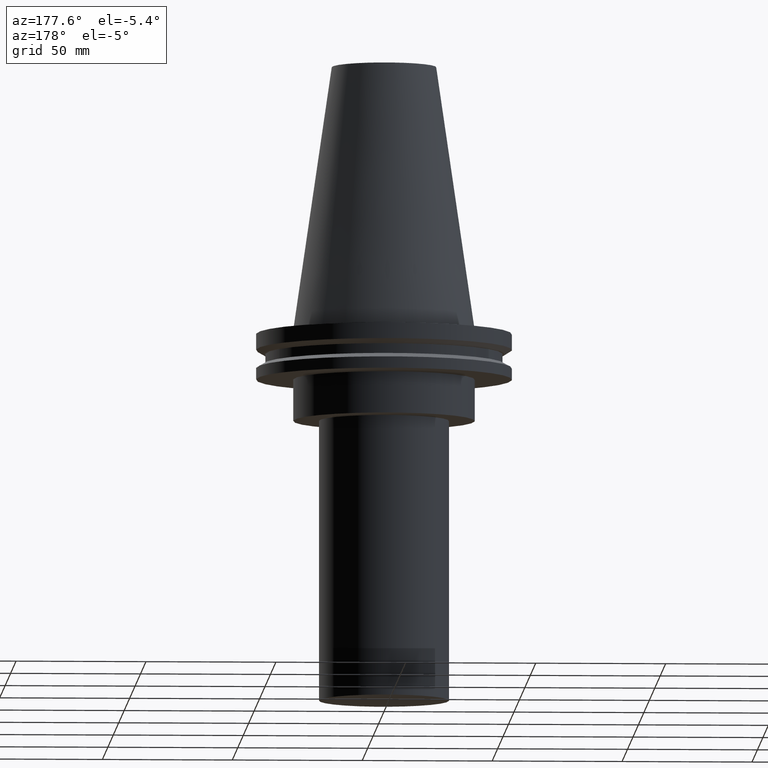
[diagram: clean part render]
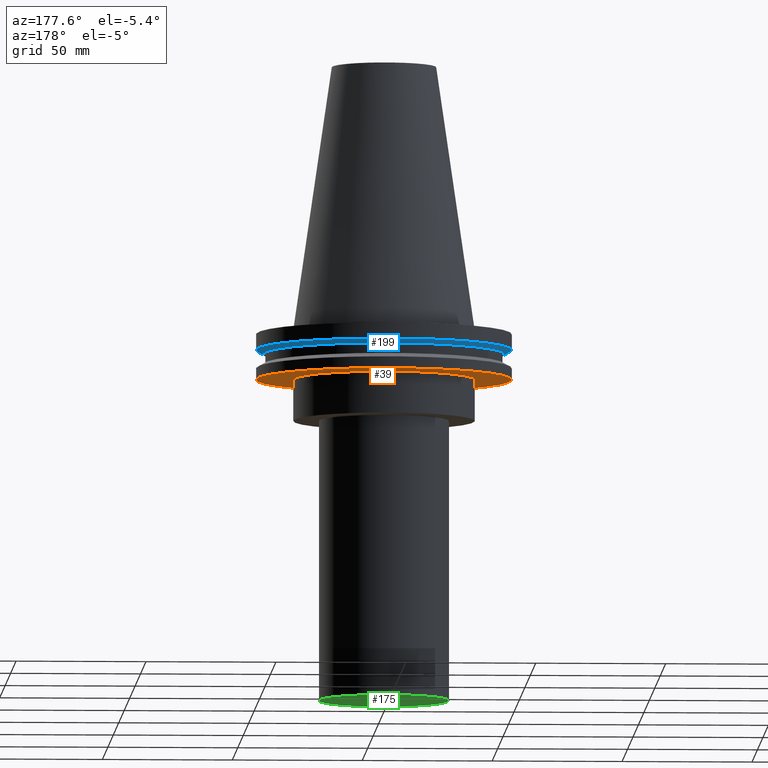
[diagram: same view with three faces highlighted in distinct colors, each labeled with its STEP entity id]
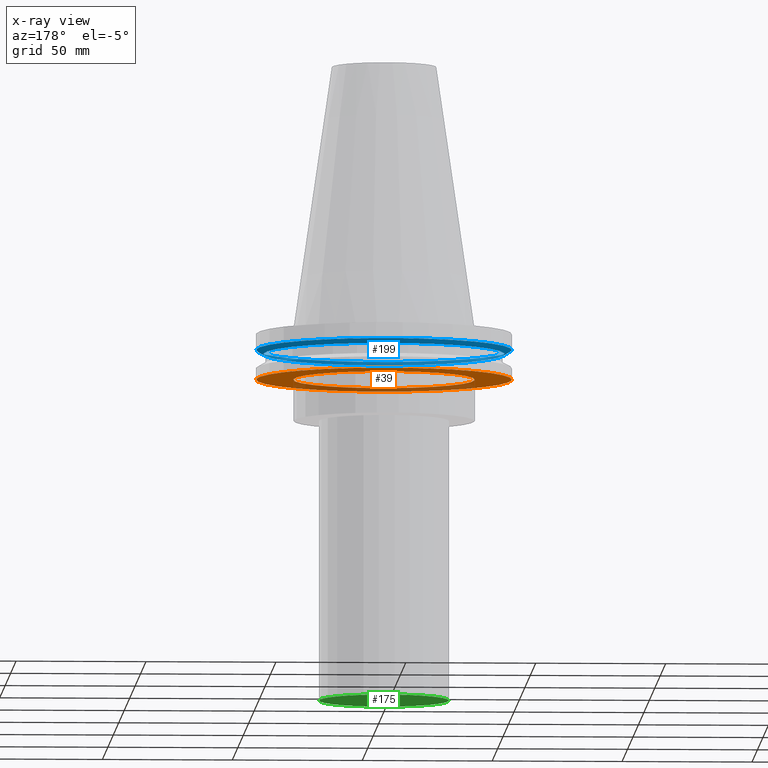
[diagram: x-ray of the same camera — body ghosted, the three highlighted faces saturated]
A machine part, auxiliary view with three faces highlighted in distinct colors.
The next image is the same camera in x-ray (body ghosted, the three faces saturated) — at least one of them is partly hidden behind the body in this view.
Their STEP definitions:

[orange] entity #39 — the highlighted planar face has unit normal (0, -0, 1).
#4 = CIRCLE ( 'NONE', #86, 49.21499999999998920 ) ;
#14 = CIRCLE ( 'NONE', #333, 34.92499999999999716 ) ;
#32 = ORIENTED_EDGE ( 'NONE', *, *, #283, .T. ) ;
#36 = VERTEX_POINT ( 'NONE', #366 ) ;
#39 = ADVANCED_FACE ( 'NONE', ( #370, #216 ), #100, .F. ) ;
#64 = CARTESIAN_POINT ( 'NONE',  ( 0.000000000000000000, 49.21499999999998920, -19.04999999999999716 ) ) ;
#71 = DIRECTION ( 'NONE',  ( 1.000000000000000000, 0.000000000000000000, 0.000000000000000000 ) ) ;
#86 = AXIS2_PLACEMENT_3D ( 'NONE', #254, #232, #173 ) ;
#95 = VERTEX_POINT ( 'NONE', #248 ) ;
#100 = PLANE ( 'NONE',  #115 ) ;
#115 = AXIS2_PLACEMENT_3D ( 'NONE', #64, #303, #71 ) ;
#136 = EDGE_CURVE ( 'NONE', #36, #36, #4, .T. ) ;
#143 = DIRECTION ( 'NONE',  ( 1.000000000000000000, 0.000000000000000000, 0.000000000000000000 ) ) ;
#151 = CARTESIAN_POINT ( 'NONE',  ( 0.000000000000000000, 0.000000000000000000, -19.04999999999999716 ) ) ;
#173 = DIRECTION ( 'NONE',  ( 1.000000000000000000, 0.000000000000000000, 0.000000000000000000 ) ) ;
#216 = FACE_BOUND ( 'NONE', #354, .T. ) ;
#232 = DIRECTION ( 'NONE',  ( -0.000000000000000000, -0.000000000000000000, 1.000000000000000000 ) ) ;
#248 = CARTESIAN_POINT ( 'NONE',  ( 34.92499999999999716, 0.000000000000000000, -19.04999999999999716 ) ) ;
#254 = CARTESIAN_POINT ( 'NONE',  ( 0.000000000000000000, 0.000000000000000000, -19.04999999999999716 ) ) ;
#255 = EDGE_LOOP ( 'NONE', ( #388 ) ) ;
#262 = DIRECTION ( 'NONE',  ( -0.000000000000000000, -0.000000000000000000, 1.000000000000000000 ) ) ;
#283 = EDGE_CURVE ( 'NONE', #95, #95, #14, .T. ) ;
#303 = DIRECTION ( 'NONE',  ( 0.000000000000000000, -0.000000000000000000, 1.000000000000000000 ) ) ;
#333 = AXIS2_PLACEMENT_3D ( 'NONE', #151, #262, #143 ) ;
#354 = EDGE_LOOP ( 'NONE', ( #32 ) ) ;
#366 = CARTESIAN_POINT ( 'NONE',  ( 49.21499999999998920, 0.000000000000000000, -19.04999999999999716 ) ) ;
#370 = FACE_OUTER_BOUND ( 'NONE', #255, .T. ) ;
#388 = ORIENTED_EDGE ( 'NONE', *, *, #136, .F. ) ;

[blue] entity #199 — the highlighted conical surface has half-angle 60 deg.
#8 = CARTESIAN_POINT ( 'NONE',  ( 0.000000000000000000, 0.000000000000000000, -7.602389855251287187 ) ) ;
#21 = CARTESIAN_POINT ( 'NONE',  ( 0.000000000000000000, 0.000000000000000000, -9.204999999999991189 ) ) ;
#22 = DIRECTION ( 'NONE',  ( -0.000000000000000000, -0.000000000000000000, 1.000000000000000000 ) ) ;
#51 = DIRECTION ( 'NONE',  ( 1.000000000000000000, 0.000000000000000000, 0.000000000000000000 ) ) ;
#91 = ORIENTED_EDGE ( 'NONE', *, *, #309, .F. ) ;
#99 = VERTEX_POINT ( 'NONE', #215 ) ;
#119 = CARTESIAN_POINT ( 'NONE',  ( 0.000000000000000000, 0.000000000000000000, -9.204999999999991189 ) ) ;
#122 = FACE_OUTER_BOUND ( 'NONE', #296, .T. ) ;
#132 = CARTESIAN_POINT ( 'NONE',  ( 49.21500000000000341, 0.000000000000000000, -7.602389855251287187 ) ) ;
#155 = CONICAL_SURFACE ( 'NONE', #376, 46.43919780457007818, 1.047197551196575205 ) ;
#158 = VERTEX_POINT ( 'NONE', #132 ) ;
#161 = AXIS2_PLACEMENT_3D ( 'NONE', #119, #286, #362 ) ;
#172 = FACE_BOUND ( 'NONE', #356, .T. ) ;
#180 = EDGE_CURVE ( 'NONE', #99, #99, #323, .T. ) ;
#199 = ADVANCED_FACE ( 'NONE', ( #122, #172 ), #155, .T. ) ;
#215 = CARTESIAN_POINT ( 'NONE',  ( 46.43919780457007818, 0.000000000000000000, -9.204999999999991189 ) ) ;
#224 = CIRCLE ( 'NONE', #383, 49.21500000000000341 ) ;
#238 = DIRECTION ( 'NONE',  ( -0.000000000000000000, -0.000000000000000000, 1.000000000000000000 ) ) ;
#286 = DIRECTION ( 'NONE',  ( -0.000000000000000000, -0.000000000000000000, 1.000000000000000000 ) ) ;
#296 = EDGE_LOOP ( 'NONE', ( #91 ) ) ;
#309 = EDGE_CURVE ( 'NONE', #158, #158, #224, .T. ) ;
#323 = CIRCLE ( 'NONE', #161, 46.43919780457007818 ) ;
#356 = EDGE_LOOP ( 'NONE', ( #394 ) ) ;
#362 = DIRECTION ( 'NONE',  ( 1.000000000000000000, 0.000000000000000000, 0.000000000000000000 ) ) ;
#372 = DIRECTION ( 'NONE',  ( 1.000000000000000000, 0.000000000000000000, 0.000000000000000000 ) ) ;
#376 = AXIS2_PLACEMENT_3D ( 'NONE', #21, #22, #51 ) ;
#383 = AXIS2_PLACEMENT_3D ( 'NONE', #8, #238, #372 ) ;
#394 = ORIENTED_EDGE ( 'NONE', *, *, #180, .T. ) ;

[green] entity #175 — the highlighted planar face has unit normal (0, -0, 1).
#25 = AXIS2_PLACEMENT_3D ( 'NONE', #82, #392, #53 ) ;
#28 = DIRECTION ( 'NONE',  ( 1.000000000000000000, 0.000000000000000000, 0.000000000000000000 ) ) ;
#53 = DIRECTION ( 'NONE',  ( 1.000000000000000000, 0.000000000000000000, 0.000000000000000000 ) ) ;
#78 = CIRCLE ( 'NONE', #352, 25.00000000000000000 ) ;
#82 = CARTESIAN_POINT ( 'NONE',  ( 0.000000000000000000, 25.00000000000000000, -143.0000000000000000 ) ) ;
#92 = VERTEX_POINT ( 'NONE', #185 ) ;
#175 = ADVANCED_FACE ( 'NONE', ( #381 ), #260, .F. ) ;
#185 = CARTESIAN_POINT ( 'NONE',  ( 25.00000000000000000, 0.000000000000000000, -143.0000000000000000 ) ) ;
#260 = PLANE ( 'NONE',  #25 ) ;
#277 = EDGE_CURVE ( 'NONE', #92, #92, #78, .T. ) ;
#293 = DIRECTION ( 'NONE',  ( -0.000000000000000000, -0.000000000000000000, 1.000000000000000000 ) ) ;
#299 = EDGE_LOOP ( 'NONE', ( #359 ) ) ;
#319 = CARTESIAN_POINT ( 'NONE',  ( 0.000000000000000000, 0.000000000000000000, -143.0000000000000000 ) ) ;
#352 = AXIS2_PLACEMENT_3D ( 'NONE', #319, #293, #28 ) ;
#359 = ORIENTED_EDGE ( 'NONE', *, *, #277, .F. ) ;
#381 = FACE_OUTER_BOUND ( 'NONE', #299, .T. ) ;
#392 = DIRECTION ( 'NONE',  ( 0.000000000000000000, -0.000000000000000000, 1.000000000000000000 ) ) ;